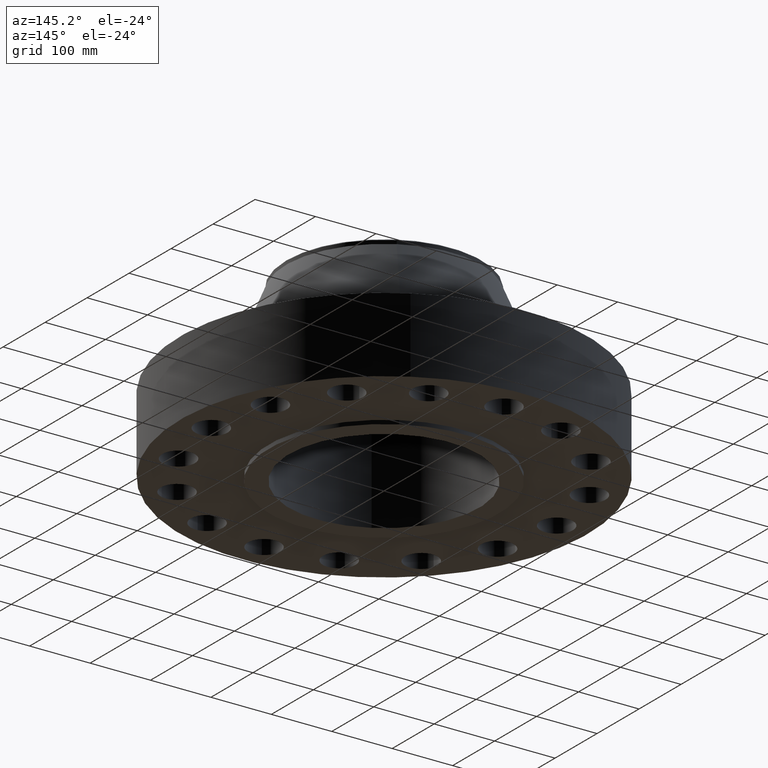
[diagram: clean part render]
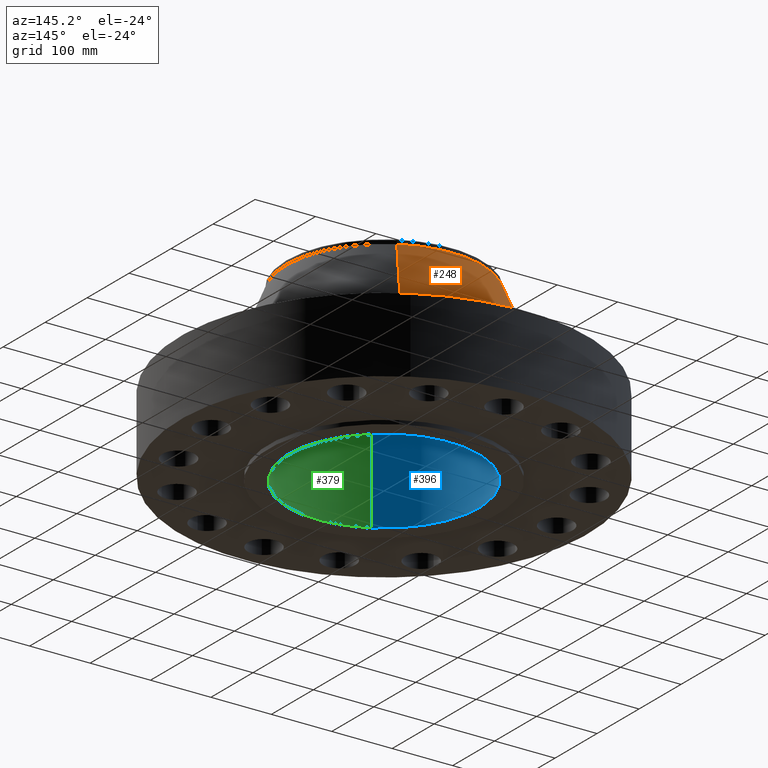
[diagram: same view with three faces highlighted in distinct colors, each labeled with its STEP entity id]
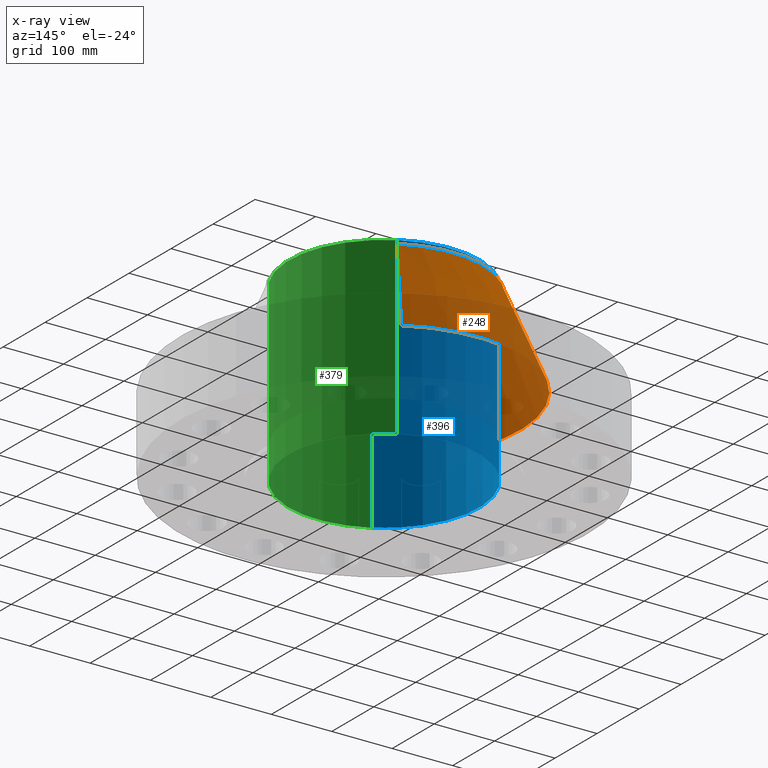
[diagram: x-ray of the same camera — body ghosted, the three highlighted faces saturated]
A machine part, auxiliary view with three faces highlighted in distinct colors.
The next image is the same camera in x-ray (body ghosted, the three faces saturated) — at least one of them is partly hidden behind the body in this view.
Their STEP definitions:

[orange] entity #248 — the highlighted conical surface has half-angle 22.873 deg.
#196=AXIS2_PLACEMENT_3D('Circle Axis2P3D',#194,#195,$) ;
#209=AXIS2_PLACEMENT_3D('Cone Axis2P3D',#206,#207,#208) ;
#239=AXIS2_PLACEMENT_3D('Circle Axis2P3D',#237,#238,$) ;
#167=CARTESIAN_POINT('Vertex',(4.24006503295,7.76138698208,4.95335696965)) ;
#174=CARTESIAN_POINT('Vertex',(-4.24006503295,-7.76138698208,4.95335696965)) ;
#194=CARTESIAN_POINT('Axis2P3D Location',(0.,0.,4.95335696965)) ;
#206=CARTESIAN_POINT('Axis2P3D Location',(0.,0.,10.8060801176)) ;
#211=CARTESIAN_POINT('Line Origine',(3.64820142078,6.67798790708,7.87971854364)) ;
#215=CARTESIAN_POINT('Vertex',(3.05633780861,5.59458883207,10.8060801176)) ;
#222=CARTESIAN_POINT('Vertex',(-3.05633780861,-5.59458883207,10.8060801176)) ;
#225=CARTESIAN_POINT('Line Origine',(-3.64820142078,-6.67798790708,7.87971854364)) ;
#237=CARTESIAN_POINT('Axis2P3D Location',(0.,0.,10.8060801176)) ;
#195=DIRECTION('Axis2P3D Direction',(0.,0.,-0.0393700787402)) ;
#207=DIRECTION('Axis2P3D Direction',(0.,0.,-0.0393700787402)) ;
#208=DIRECTION('Axis2P3D XDirection',(-0.0188750212049,-0.0345504945626,0.)) ;
#212=DIRECTION('Vector Direction',(0.00733656822734,0.0134294980597,-0.0362743221648)) ;
#226=DIRECTION('Vector Direction',(-0.00733656822734,-0.0134294980597,-0.0362743221648)) ;
#238=DIRECTION('Axis2P3D Direction',(0.,0.,-0.0393700787402)) ;
#213=VECTOR('Line Direction',#212,0.0393700787402) ;
#227=VECTOR('Line Direction',#226,0.0393700787402) ;
#243=ORIENTED_EDGE('',*,*,#198,.F.) ;
#244=ORIENTED_EDGE('',*,*,#229,.T.) ;
#245=ORIENTED_EDGE('',*,*,#241,.T.) ;
#246=ORIENTED_EDGE('',*,*,#217,.F.) ;
#248=ADVANCED_FACE('PartBody',(#247),#210,.T.) ;
#197=CIRCLE('generated circle',#196,8.8440533337) ;
#240=CIRCLE('generated circle',#239,6.37500000003) ;
#210=CONICAL_SURFACE('Cone',#209,6.37500000003,0.399211451172) ;
#198=EDGE_CURVE('',#175,#168,#197,.T.) ;
#217=EDGE_CURVE('',#168,#216,#214,.F.) ;
#229=EDGE_CURVE('',#175,#223,#228,.F.) ;
#241=EDGE_CURVE('',#223,#216,#240,.T.) ;
#242=EDGE_LOOP('',(#243,#244,#245,#246)) ;
#247=FACE_OUTER_BOUND('',#242,.T.) ;
#214=LINE('Line',#211,#213) ;
#228=LINE('Line',#225,#227) ;
#168=VERTEX_POINT('',#167) ;
#175=VERTEX_POINT('',#174) ;
#216=VERTEX_POINT('',#215) ;
#223=VERTEX_POINT('',#222) ;

[blue] entity #396 — the highlighted cylindrical surface (partial cylindrical patch) has radius 157.353 mm, axis along (0, 0, -1).
#343=AXIS2_PLACEMENT_3D('Cylinder Axis2P3D',#340,#341,#342) ;
#382=AXIS2_PLACEMENT_3D('Circle Axis2P3D',#380,#381,$) ;
#387=AXIS2_PLACEMENT_3D('Circle Axis2P3D',#385,#386,$) ;
#340=CARTESIAN_POINT('Axis2P3D Location',(0.,0.,5.43500000002)) ;
#349=CARTESIAN_POINT('Vertex',(2.97004121166,5.43662397093,11.12)) ;
#351=CARTESIAN_POINT('Vertex',(-2.97004121166,-5.43662397093,11.12)) ;
#354=CARTESIAN_POINT('Line Origine',(2.97004121166,5.43662397093,5.43500000002)) ;
#358=CARTESIAN_POINT('Vertex',(2.97004121166,5.43662397093,-0.250000000001)) ;
#365=CARTESIAN_POINT('Vertex',(-2.97004121166,-5.43662397093,-0.250000000001)) ;
#368=CARTESIAN_POINT('Line Origine',(-2.97004121166,-5.43662397093,5.43500000002)) ;
#380=CARTESIAN_POINT('Axis2P3D Location',(0.,0.,11.12)) ;
#385=CARTESIAN_POINT('Axis2P3D Location',(0.,0.,-0.250000000001)) ;
#341=DIRECTION('Axis2P3D Direction',(0.,0.,-0.0393700787402)) ;
#342=DIRECTION('Axis2P3D XDirection',(-0.0188750212049,-0.0345504945626,0.)) ;
#355=DIRECTION('Vector Direction',(0.,0.,-0.0393700787402)) ;
#369=DIRECTION('Vector Direction',(0.,0.,-0.0393700787402)) ;
#381=DIRECTION('Axis2P3D Direction',(0.,0.,-0.0393700787402)) ;
#386=DIRECTION('Axis2P3D Direction',(0.,0.,-0.0393700787402)) ;
#356=VECTOR('Line Direction',#355,0.0393700787402) ;
#370=VECTOR('Line Direction',#369,0.0393700787402) ;
#391=ORIENTED_EDGE('',*,*,#384,.F.) ;
#392=ORIENTED_EDGE('',*,*,#372,.T.) ;
#393=ORIENTED_EDGE('',*,*,#389,.T.) ;
#394=ORIENTED_EDGE('',*,*,#360,.F.) ;
#396=ADVANCED_FACE('PartBody',(#395),#344,.F.) ;
#383=CIRCLE('generated circle',#382,6.19500000002) ;
#388=CIRCLE('generated circle',#387,6.19500000002) ;
#344=CYLINDRICAL_SURFACE('generated cylinder',#343,6.19500000002) ;
#360=EDGE_CURVE('',#350,#359,#357,.T.) ;
#372=EDGE_CURVE('',#352,#366,#371,.T.) ;
#384=EDGE_CURVE('',#352,#350,#383,.T.) ;
#389=EDGE_CURVE('',#366,#359,#388,.T.) ;
#390=EDGE_LOOP('',(#391,#392,#393,#394)) ;
#395=FACE_OUTER_BOUND('',#390,.T.) ;
#357=LINE('Line',#354,#356) ;
#371=LINE('Line',#368,#370) ;
#350=VERTEX_POINT('',#349) ;
#352=VERTEX_POINT('',#351) ;
#359=VERTEX_POINT('',#358) ;
#366=VERTEX_POINT('',#365) ;

[green] entity #379 — the highlighted cylindrical surface (partial cylindrical patch) has radius 157.353 mm, axis along (0, 0, -1).
#343=AXIS2_PLACEMENT_3D('Cylinder Axis2P3D',#340,#341,#342) ;
#347=AXIS2_PLACEMENT_3D('Circle Axis2P3D',#345,#346,$) ;
#363=AXIS2_PLACEMENT_3D('Circle Axis2P3D',#361,#362,$) ;
#340=CARTESIAN_POINT('Axis2P3D Location',(0.,0.,5.43500000002)) ;
#345=CARTESIAN_POINT('Axis2P3D Location',(0.,0.,11.12)) ;
#349=CARTESIAN_POINT('Vertex',(2.97004121166,5.43662397093,11.12)) ;
#351=CARTESIAN_POINT('Vertex',(-2.97004121166,-5.43662397093,11.12)) ;
#354=CARTESIAN_POINT('Line Origine',(2.97004121166,5.43662397093,5.43500000002)) ;
#358=CARTESIAN_POINT('Vertex',(2.97004121166,5.43662397093,-0.250000000001)) ;
#361=CARTESIAN_POINT('Axis2P3D Location',(0.,0.,-0.250000000001)) ;
#365=CARTESIAN_POINT('Vertex',(-2.97004121166,-5.43662397093,-0.250000000001)) ;
#368=CARTESIAN_POINT('Line Origine',(-2.97004121166,-5.43662397093,5.43500000002)) ;
#341=DIRECTION('Axis2P3D Direction',(0.,0.,-0.0393700787402)) ;
#342=DIRECTION('Axis2P3D XDirection',(-0.0188750212049,-0.0345504945626,0.)) ;
#346=DIRECTION('Axis2P3D Direction',(0.,0.,-0.0393700787402)) ;
#355=DIRECTION('Vector Direction',(0.,0.,-0.0393700787402)) ;
#362=DIRECTION('Axis2P3D Direction',(0.,0.,-0.0393700787402)) ;
#369=DIRECTION('Vector Direction',(0.,0.,-0.0393700787402)) ;
#356=VECTOR('Line Direction',#355,0.0393700787402) ;
#370=VECTOR('Line Direction',#369,0.0393700787402) ;
#374=ORIENTED_EDGE('',*,*,#353,.F.) ;
#375=ORIENTED_EDGE('',*,*,#360,.T.) ;
#376=ORIENTED_EDGE('',*,*,#367,.T.) ;
#377=ORIENTED_EDGE('',*,*,#372,.F.) ;
#379=ADVANCED_FACE('PartBody',(#378),#344,.F.) ;
#348=CIRCLE('generated circle',#347,6.19500000002) ;
#364=CIRCLE('generated circle',#363,6.19500000002) ;
#344=CYLINDRICAL_SURFACE('generated cylinder',#343,6.19500000002) ;
#353=EDGE_CURVE('',#350,#352,#348,.T.) ;
#360=EDGE_CURVE('',#350,#359,#357,.T.) ;
#367=EDGE_CURVE('',#359,#366,#364,.T.) ;
#372=EDGE_CURVE('',#352,#366,#371,.T.) ;
#373=EDGE_LOOP('',(#374,#375,#376,#377)) ;
#378=FACE_OUTER_BOUND('',#373,.T.) ;
#357=LINE('Line',#354,#356) ;
#371=LINE('Line',#368,#370) ;
#350=VERTEX_POINT('',#349) ;
#352=VERTEX_POINT('',#351) ;
#359=VERTEX_POINT('',#358) ;
#366=VERTEX_POINT('',#365) ;